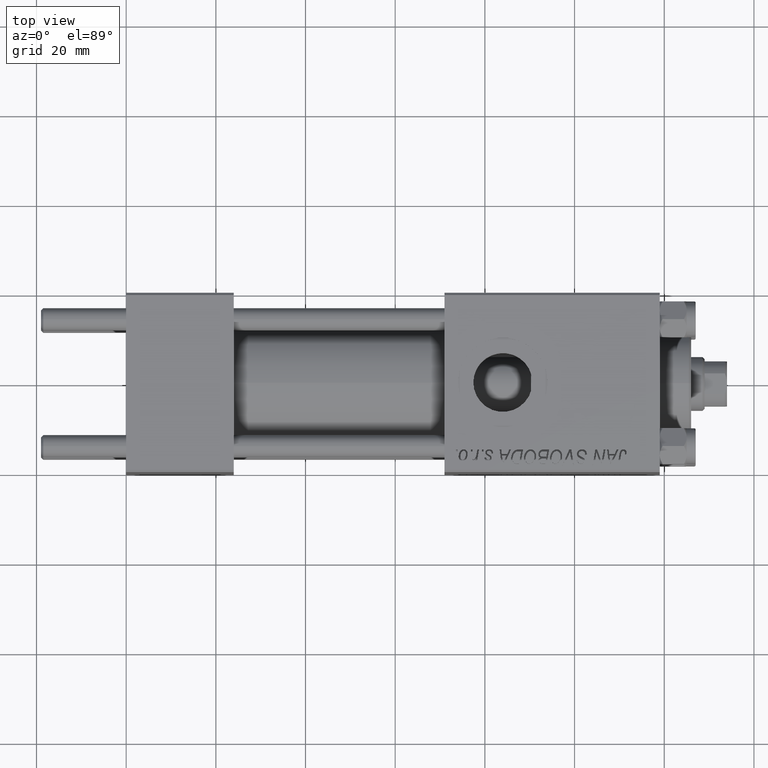
[diagram: clean part render]
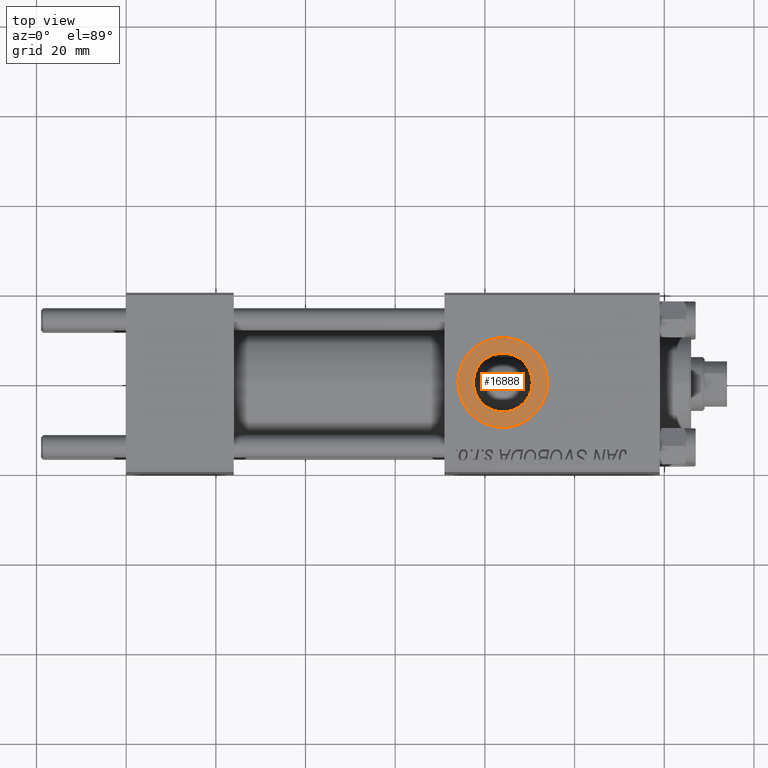
[diagram: same view with one face highlighted and labeled with its STEP entity id]
A machine part, top view. The second image highlights one B-rep face of the part: STEP entity #16888.
In plain terms, the highlighted planar face has unit normal (0, 0, 1).
Its self-contained STEP definition (entity closure, byte-faithful):
#561 = FACE_OUTER_BOUND ( 'NONE', #14248, .T. ) ;
#1497 = CIRCLE ( 'NONE', #49716, 10.00000000000000888 ) ;
#3823 = CIRCLE ( 'NONE', #40065, 6.580000000000002736 ) ;
#4798 = AXIS2_PLACEMENT_3D ( 'NONE', #34794, #49651, #42099 ) ;
#11370 = DIRECTION ( 'NONE',  ( -0.000000000000000000, -0.000000000000000000, -1.000000000000000000 ) ) ;
#11663 = EDGE_CURVE ( 'NONE', #29076, #39334, #3823, .T. ) ;
#13064 = EDGE_CURVE ( 'NONE', #34361, #24039, #1497, .T. ) ;
#14248 = EDGE_LOOP ( 'NONE', ( #35779, #16052 ) ) ;
#15224 = ORIENTED_EDGE ( 'NONE', *, *, #47294, .T. ) ;
#16052 = ORIENTED_EDGE ( 'NONE', *, *, #36107, .T. ) ;
#16149 = CARTESIAN_POINT ( 'NONE',  ( 84.00000000000162004, -1.734723475976807094E-15, 19.80000000000000071 ) ) ;
#16888 = ADVANCED_FACE ( 'NONE', ( #22965, #561 ), #41859, .T. ) ;
#16937 = DIRECTION ( 'NONE',  ( 1.000000000000000000, 0.000000000000000000, 0.000000000000000000 ) ) ;
#18946 = AXIS2_PLACEMENT_3D ( 'NONE', #16149, #11370, #26720 ) ;
#21733 = DIRECTION ( 'NONE',  ( 1.000000000000000000, 0.000000000000000000, 0.000000000000000000 ) ) ;
#22604 = EDGE_LOOP ( 'NONE', ( #15224, #24096 ) ) ;
#22965 = FACE_BOUND ( 'NONE', #22604, .T. ) ;
#24039 = VERTEX_POINT ( 'NONE', #31155 ) ;
#24096 = ORIENTED_EDGE ( 'NONE', *, *, #11663, .T. ) ;
#25743 = CARTESIAN_POINT ( 'NONE',  ( 84.00000000000162004, -1.734723475976807094E-15, 19.80000000000000071 ) ) ;
#26720 = DIRECTION ( 'NONE',  ( 1.000000000000000000, 0.000000000000000000, 0.000000000000000000 ) ) ;
#28341 = CARTESIAN_POINT ( 'NONE',  ( 90.58000000000161833, -9.289058821378484469E-16, 19.80000000000000071 ) ) ;
#29076 = VERTEX_POINT ( 'NONE', #28341 ) ;
#31155 = CARTESIAN_POINT ( 'NONE',  ( 74.00000000000160583, -5.100766768294525560E-16, 19.80000000000000071 ) ) ;
#34361 = VERTEX_POINT ( 'NONE', #35247 ) ;
#34794 = CARTESIAN_POINT ( 'NONE',  ( 84.00000000000162004, -1.734723475976806897E-15, 19.80000000000000071 ) ) ;
#35247 = CARTESIAN_POINT ( 'NONE',  ( 94.00000000000162004, -1.734723475976806897E-15, 19.80000000000000071 ) ) ;
#35324 = CARTESIAN_POINT ( 'NONE',  ( 77.42000000000160753, -1.734723475976807094E-15, 19.80000000000000071 ) ) ;
#35779 = ORIENTED_EDGE ( 'NONE', *, *, #13064, .T. ) ;
#36107 = EDGE_CURVE ( 'NONE', #24039, #34361, #42840, .T. ) ;
#38814 = AXIS2_PLACEMENT_3D ( 'NONE', #47135, #39094, #16937 ) ;
#39094 = DIRECTION ( 'NONE',  ( 0.000000000000000000, 0.000000000000000000, 1.000000000000000000 ) ) ;
#39334 = VERTEX_POINT ( 'NONE', #35324 ) ;
#39943 = CARTESIAN_POINT ( 'NONE',  ( 84.00000000000162004, -1.734723475976806897E-15, 19.80000000000000071 ) ) ;
#40065 = AXIS2_PLACEMENT_3D ( 'NONE', #25743, #48408, #21733 ) ;
#41859 = PLANE ( 'NONE',  #4798 ) ;
#42099 = DIRECTION ( 'NONE',  ( 1.000000000000000000, 0.000000000000000000, -0.000000000000000000 ) ) ;
#42840 = CIRCLE ( 'NONE', #38814, 10.00000000000000888 ) ;
#43965 = DIRECTION ( 'NONE',  ( 0.000000000000000000, 0.000000000000000000, 1.000000000000000000 ) ) ;
#44682 = CIRCLE ( 'NONE', #18946, 6.580000000000002736 ) ;
#47135 = CARTESIAN_POINT ( 'NONE',  ( 84.00000000000162004, -1.734723475976806897E-15, 19.80000000000000071 ) ) ;
#47294 = EDGE_CURVE ( 'NONE', #39334, #29076, #44682, .T. ) ;
#47990 = DIRECTION ( 'NONE',  ( 1.000000000000000000, 0.000000000000000000, 0.000000000000000000 ) ) ;
#48408 = DIRECTION ( 'NONE',  ( -0.000000000000000000, -0.000000000000000000, -1.000000000000000000 ) ) ;
#49651 = DIRECTION ( 'NONE',  ( 0.000000000000000000, 0.000000000000000000, 1.000000000000000000 ) ) ;
#49716 = AXIS2_PLACEMENT_3D ( 'NONE', #39943, #43965, #47990 ) ;